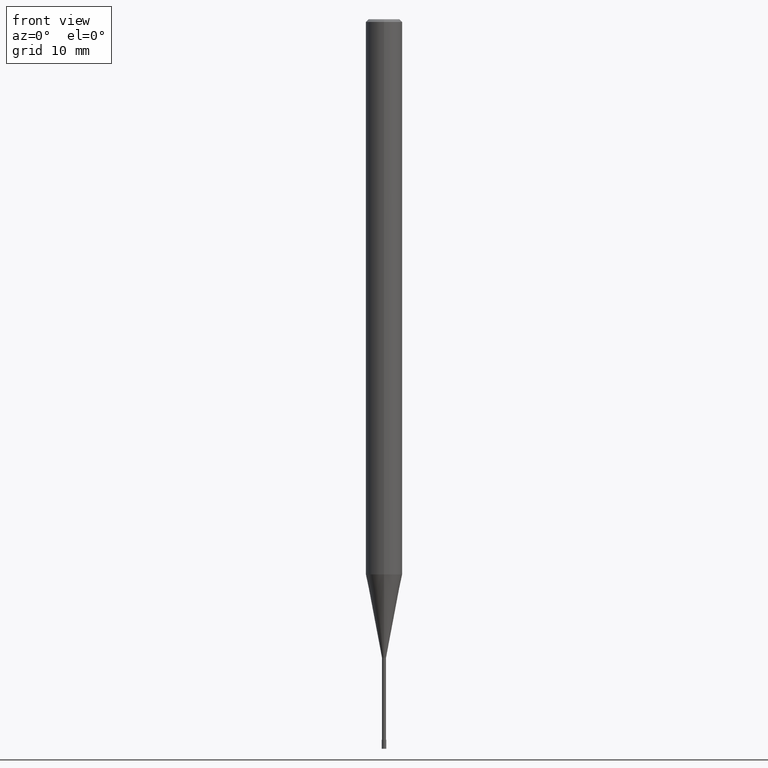
[diagram: clean part render]
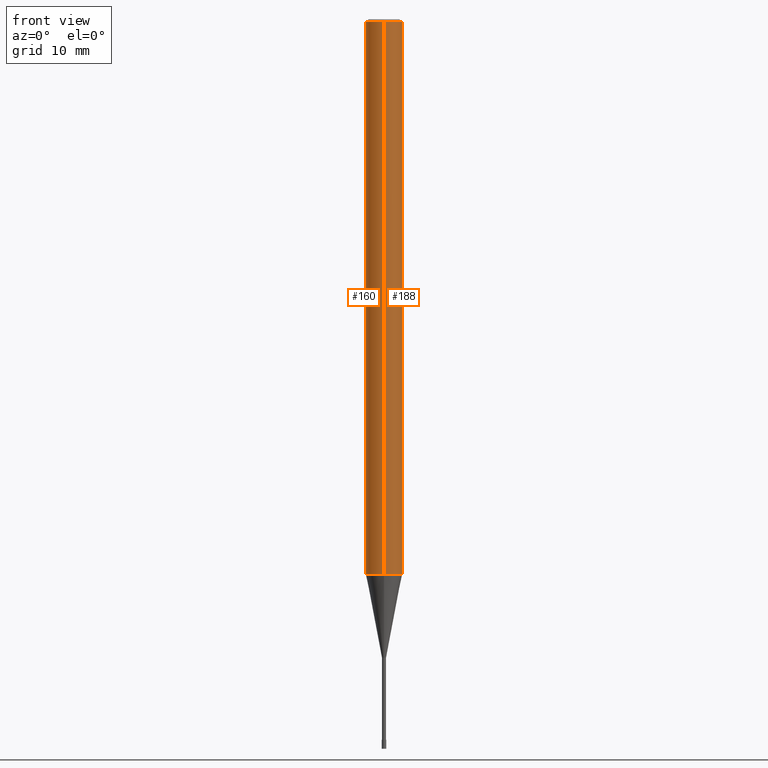
[diagram: same view with one multi-face feature highlighted, each face labeled with its STEP entity id]
A machine part, front view. The highlighted faces form ONE feature: a constant-radius fillet chain: 2 tangent blend faces with common blend radius 2 mm. The faces share edges in the B-rep.
Their STEP definitions:
[1] entity #160 (Cylinder):
#122=VERTEX_POINT('',#266);
#138=EDGE_CURVE('',#192,#170,#284,.T.);
#140=EDGE_CURVE('',#170,#142,#286,.T.);
#142=VERTEX_POINT('',#288);
#160=ADVANCED_FACE('',(#307),#308,.T.);
#166=EDGE_CURVE('',#142,#122,#316,.T.);
#170=VERTEX_POINT('',#320);
#174=EDGE_CURVE('',#192,#122,#324,.T.);
#192=VERTEX_POINT('',#344);
#266=CARTESIAN_POINT('',(0.0,2.0,-60.868));
#284=LINE('',#444,#445);
#286=CIRCLE('',#448,2.0);
#288=CARTESIAN_POINT('',(0.0,2.0,-0.299999999999997));
#307=FACE_OUTER_BOUND('',#474,.T.);
#308=CYLINDRICAL_SURFACE('',#475,2.0);
#316=LINE('',#484,#485);
#320=CARTESIAN_POINT('',(2.44921270764475E-016,-2.0,-0.299999999999997));
#324=CIRCLE('',#496,2.0);
#344=CARTESIAN_POINT('',(2.44921270764475E-016,-2.0,-60.868));
#444=CARTESIAN_POINT('',(2.44921270764475E-016,-2.0,-30.584));
#445=VECTOR('',#621,1.0);
#448=AXIS2_PLACEMENT_3D('',#622,#623,#624);
#474=EDGE_LOOP('',(#648,#649,#650,#651));
#475=AXIS2_PLACEMENT_3D('',#652,#653,#654);
#484=CARTESIAN_POINT('',(-2.44921270764475E-016,2.0,-30.584));
#485=VECTOR('',#669,1.0);
#496=AXIS2_PLACEMENT_3D('',#671,#672,#673);
#621=DIRECTION('',(-0.0,-0.0,1.0));
#622=CARTESIAN_POINT('',(0.0,0.0,-0.299999999999997));
#623=DIRECTION('',(0.0,0.0,-1.0));
#624=DIRECTION('',(0.0,1.0,0.0));
#648=ORIENTED_EDGE('',*,*,#166,.T.);
#649=ORIENTED_EDGE('',*,*,#174,.F.);
#650=ORIENTED_EDGE('',*,*,#138,.T.);
#651=ORIENTED_EDGE('',*,*,#140,.T.);
#652=CARTESIAN_POINT('',(0.0,0.0,-30.584));
#653=DIRECTION('',(-0.0,-0.0,1.0));
#654=DIRECTION('',(0.0,1.0,0.0));
#669=DIRECTION('',(0.0,0.0,-1.0));
#671=CARTESIAN_POINT('',(0.0,0.0,-60.868));
#672=DIRECTION('',(0.0,0.0,-1.0));
#673=DIRECTION('',(0.0,1.0,0.0));
[2] entity #188 (Cylinder):
#122=VERTEX_POINT('',#266);
#130=EDGE_CURVE('',#122,#192,#276,.T.);
#138=EDGE_CURVE('',#192,#170,#284,.T.);
#142=VERTEX_POINT('',#288);
#148=EDGE_CURVE('',#142,#170,#294,.T.);
#166=EDGE_CURVE('',#142,#122,#316,.T.);
#170=VERTEX_POINT('',#320);
#188=ADVANCED_FACE('',(#339),#340,.T.);
#192=VERTEX_POINT('',#344);
#266=CARTESIAN_POINT('',(0.0,2.0,-60.868));
#276=CIRCLE('',#431,2.0);
#284=LINE('',#444,#445);
#288=CARTESIAN_POINT('',(0.0,2.0,-0.299999999999997));
#294=CIRCLE('',#459,2.0);
#316=LINE('',#484,#485);
#320=CARTESIAN_POINT('',(2.44921270764475E-016,-2.0,-0.299999999999997));
#339=FACE_OUTER_BOUND('',#513,.T.);
#340=CYLINDRICAL_SURFACE('',#514,2.0);
#344=CARTESIAN_POINT('',(2.44921270764475E-016,-2.0,-60.868));
#431=AXIS2_PLACEMENT_3D('',#611,#612,#613);
#444=CARTESIAN_POINT('',(2.44921270764475E-016,-2.0,-30.584));
#445=VECTOR('',#621,1.0);
#459=AXIS2_PLACEMENT_3D('',#626,#627,#628);
#484=CARTESIAN_POINT('',(-2.44921270764475E-016,2.0,-30.584));
#485=VECTOR('',#669,1.0);
#513=EDGE_LOOP('',(#689,#690,#691,#692));
#514=AXIS2_PLACEMENT_3D('',#693,#694,#695);
#611=CARTESIAN_POINT('',(0.0,0.0,-60.868));
#612=DIRECTION('',(0.0,0.0,-1.0));
#613=DIRECTION('',(0.0,1.0,0.0));
#621=DIRECTION('',(-0.0,-0.0,1.0));
#626=CARTESIAN_POINT('',(0.0,0.0,-0.299999999999997));
#627=DIRECTION('',(0.0,0.0,-1.0));
#628=DIRECTION('',(0.0,1.0,0.0));
#669=DIRECTION('',(0.0,0.0,-1.0));
#689=ORIENTED_EDGE('',*,*,#166,.F.);
#690=ORIENTED_EDGE('',*,*,#148,.T.);
#691=ORIENTED_EDGE('',*,*,#138,.F.);
#692=ORIENTED_EDGE('',*,*,#130,.F.);
#693=CARTESIAN_POINT('',(0.0,0.0,-30.584));
#694=DIRECTION('',(-0.0,-0.0,1.0));
#695=DIRECTION('',(0.0,1.0,0.0));